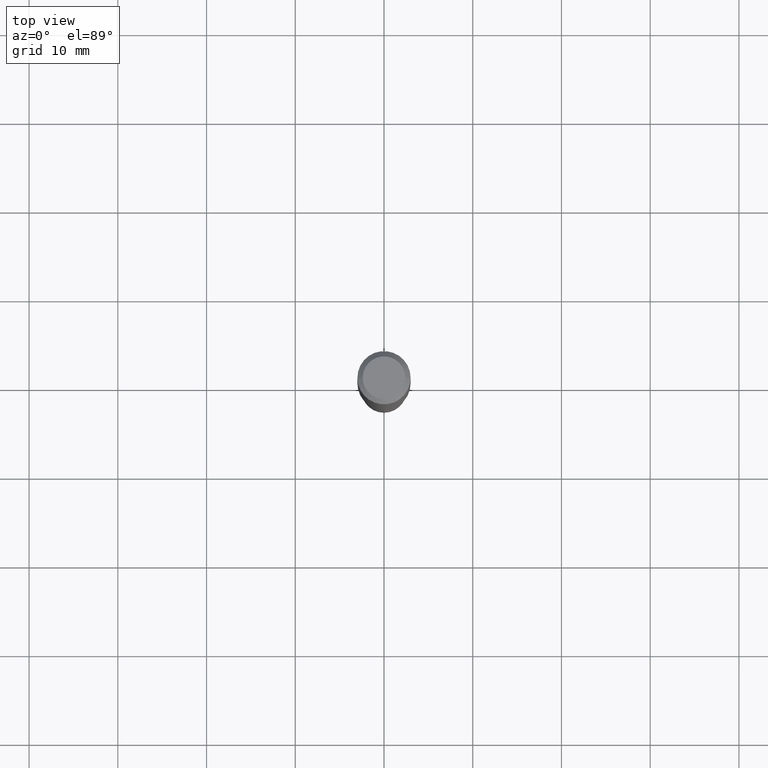
[diagram: clean part render]
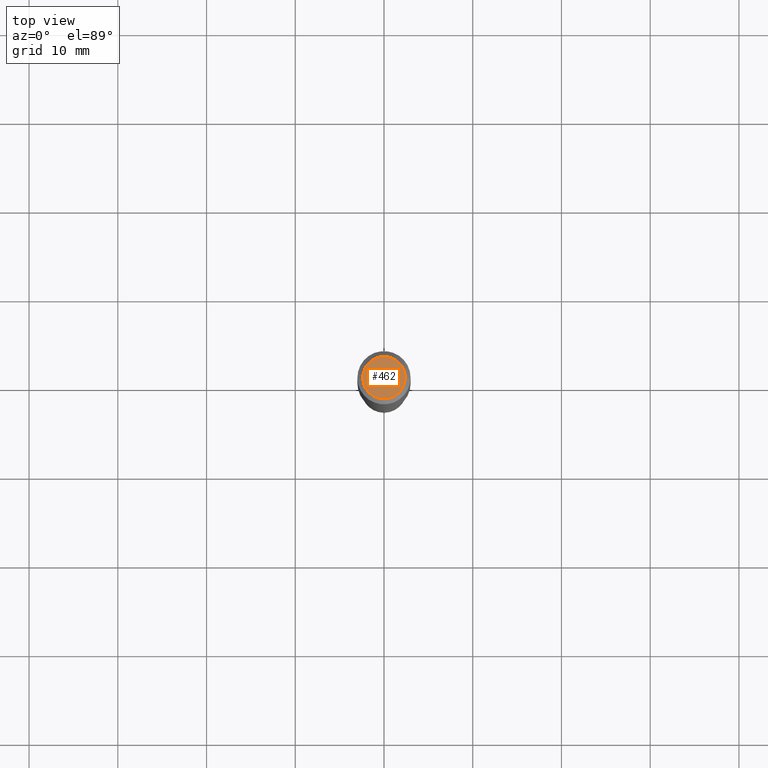
[diagram: same view with one face highlighted and labeled with its STEP entity id]
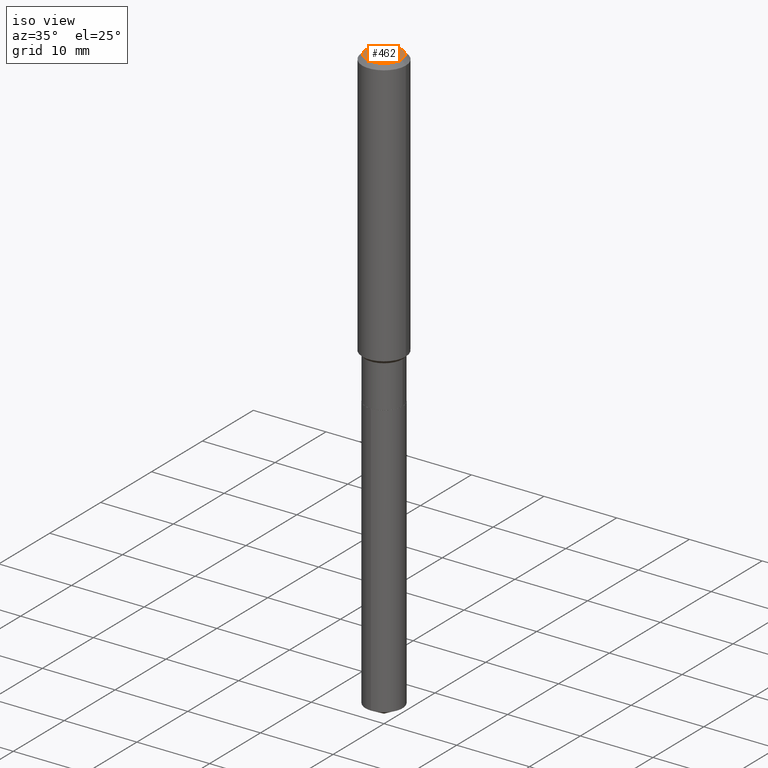
[diagram: same view with one face highlighted and labeled with its STEP entity id]
A machine part, top view. The second image highlights one B-rep face of the part: STEP entity #462.
A second angle (iso view) of the same face is appended — the face is thin or edge-on in the first view.
In plain terms, the highlighted planar face has unit normal (0, -0, -1).
Its self-contained STEP definition (entity closure, byte-faithful):
#11 = EDGE_LOOP ( 'NONE', ( #227, #336 ) ) ;
#34 = EDGE_CURVE ( 'NONE', #43, #299, #223, .T. ) ;
#43 = VERTEX_POINT ( 'NONE', #85 ) ;
#44 = DIRECTION ( 'NONE',  ( 1.000000000000000000, -6.982962677686267499E-15, 4.875432709231658792E-29 ) ) ;
#79 = DIRECTION ( 'NONE',  ( 2.438088387897960049E-29, -3.491481338843145188E-15, -1.000000000000000000 ) ) ;
#85 = CARTESIAN_POINT ( 'NONE',  ( -0.09447999999999998066, 7.009847083995354710E-16, -1.928573779297727792E-17 ) ) ;
#90 = PLANE ( 'NONE',  #218 ) ;
#93 = AXIS2_PLACEMENT_3D ( 'NONE', #479, #366, #266 ) ;
#161 = DIRECTION ( 'NONE',  ( -1.000000000000000000, 6.982962677686265922E-15, -4.876176775795935793E-29 ) ) ;
#218 = AXIS2_PLACEMENT_3D ( 'NONE', #228, #79, #161 ) ;
#223 = CIRCLE ( 'NONE', #358, 0.09447999999999998066 ) ;
#227 = ORIENTED_EDGE ( 'NONE', *, *, #34, .T. ) ;
#228 = CARTESIAN_POINT ( 'NONE',  ( 2.358133508849003952E-46, -3.366789680499277518E-32, -9.642868896486260050E-18 ) ) ;
#266 = DIRECTION ( 'NONE',  ( 1.000000000000000000, -6.982962677686267499E-15, 4.875432709231658792E-29 ) ) ;
#299 = VERTEX_POINT ( 'NONE', #407 ) ;
#333 = EDGE_CURVE ( 'NONE', #299, #43, #455, .T. ) ;
#336 = ORIENTED_EDGE ( 'NONE', *, *, #333, .T. ) ;
#358 = AXIS2_PLACEMENT_3D ( 'NONE', #387, #414, #44 ) ;
#366 = DIRECTION ( 'NONE',  ( -2.445468806185136597E-29, 3.491481338843145583E-15, 1.000000000000000000 ) ) ;
#387 = CARTESIAN_POINT ( 'NONE',  ( 4.716267017698007905E-46, -6.733579360998555036E-32, -1.928573779297252010E-17 ) ) ;
#407 = CARTESIAN_POINT ( 'NONE',  ( 0.09447999999999998066, -7.704367267948738690E-16, -1.928573779296752193E-17 ) ) ;
#413 = FACE_OUTER_BOUND ( 'NONE', #11, .T. ) ;
#414 = DIRECTION ( 'NONE',  ( -2.445468806185136597E-29, 3.491481338843145583E-15, 1.000000000000000000 ) ) ;
#455 = CIRCLE ( 'NONE', #93, 0.09447999999999998066 ) ;
#462 = ADVANCED_FACE ( 'NONE', ( #413 ), #90, .F. ) ;
#479 = CARTESIAN_POINT ( 'NONE',  ( 4.716267017698007905E-46, -6.733579360998555036E-32, -1.928573779297252010E-17 ) ) ;